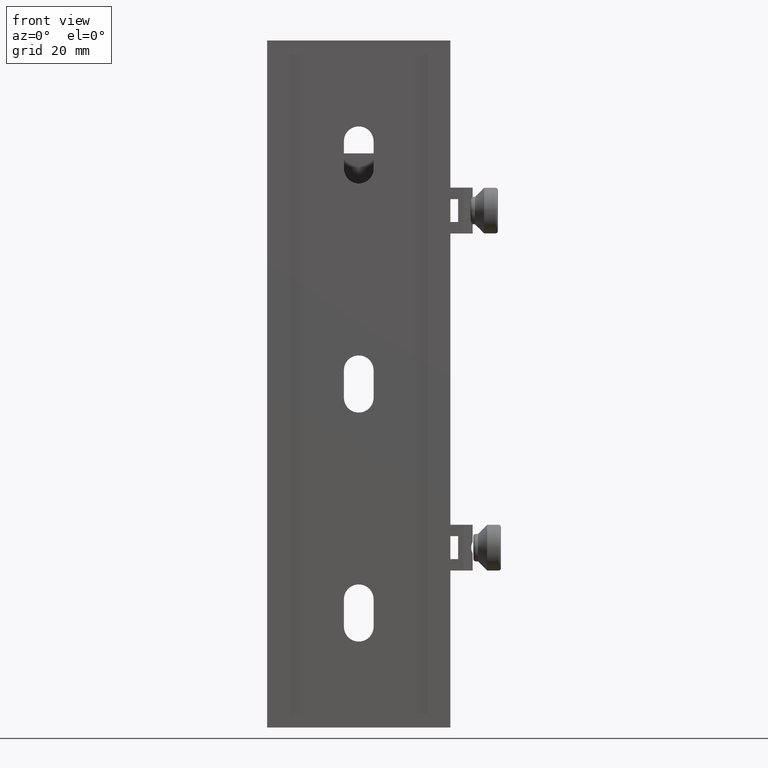
[diagram: clean part render]
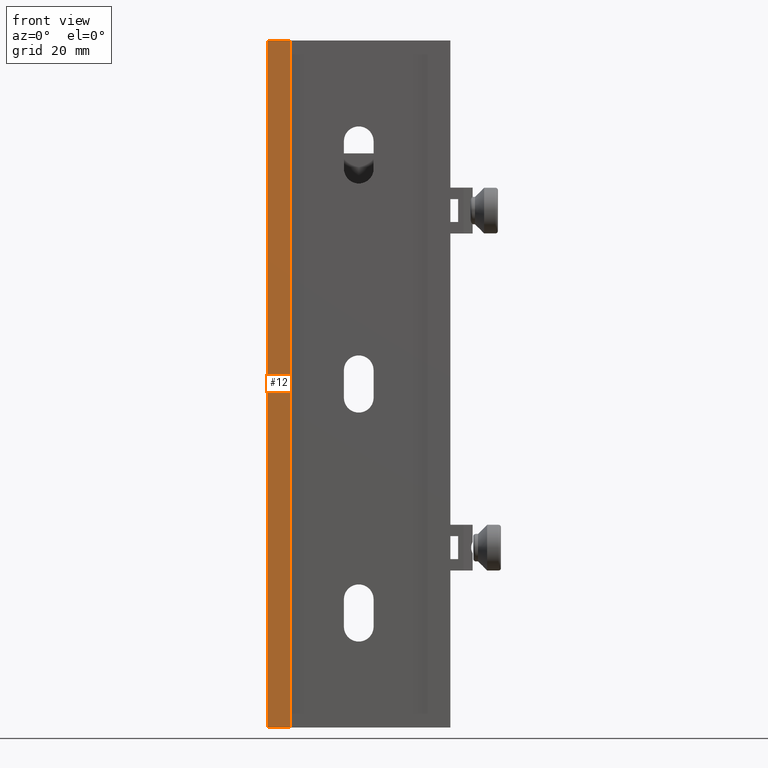
[diagram: same view with one face highlighted and labeled with its STEP entity id]
A machine part, front view. The second image highlights one B-rep face of the part: STEP entity #12.
In plain terms, the highlighted planar face has unit normal (-0, 1, 0).
Its self-contained STEP definition (entity closure, byte-faithful):
#12 = ADVANCED_FACE ( 'NONE', ( #5409 ), #5353, .F. ) ;
#42 = DIRECTION ( 'NONE',  ( 1.236303256585107026E-16, 0.000000000000000000, -1.000000000000000000 ) ) ;
#299 = DIRECTION ( 'NONE',  ( 1.000000000000000000, 1.301042606982605321E-16, 0.000000000000000000 ) ) ;
#321 = EDGE_CURVE ( 'NONE', #5475, #1060, #1321, .T. ) ;
#374 = ORIENTED_EDGE ( 'NONE', *, *, #2422, .T. ) ;
#532 = VECTOR ( 'NONE', #2877, 1000.000000000000000 ) ;
#567 = CARTESIAN_POINT ( 'NONE',  ( -19.99999999999999645, -6.499999999999999112, 75.00000000000000000 ) ) ;
#588 = CARTESIAN_POINT ( 'NONE',  ( -19.99999999999999645, -6.499999999999999112, 75.00000000000000000 ) ) ;
#862 = VERTEX_POINT ( 'NONE', #1460 ) ;
#1060 = VERTEX_POINT ( 'NONE', #4925 ) ;
#1106 = VECTOR ( 'NONE', #299, 1000.000000000000000 ) ;
#1177 = ORIENTED_EDGE ( 'NONE', *, *, #321, .F. ) ;
#1321 = LINE ( 'NONE', #3965, #5437 ) ;
#1366 = AXIS2_PLACEMENT_3D ( 'NONE', #567, #4896, #4548 ) ;
#1460 = CARTESIAN_POINT ( 'NONE',  ( -19.99999999999999645, -6.499999999999999112, -75.00000000000000000 ) ) ;
#1544 = ORIENTED_EDGE ( 'NONE', *, *, #2942, .F. ) ;
#1895 = CARTESIAN_POINT ( 'NONE',  ( -15.00000000000001066, -6.499999999999996447, 75.00000000000001421 ) ) ;
#2313 = EDGE_LOOP ( 'NONE', ( #374, #1177, #1544, #4292 ) ) ;
#2422 = EDGE_CURVE ( 'NONE', #862, #1060, #2469, .T. ) ;
#2469 = LINE ( 'NONE', #4224, #1106 ) ;
#2877 = DIRECTION ( 'NONE',  ( 1.000000000000000000, 1.301042606982605321E-16, 0.000000000000000000 ) ) ;
#2942 = EDGE_CURVE ( 'NONE', #4600, #5475, #4749, .T. ) ;
#2961 = CARTESIAN_POINT ( 'NONE',  ( -19.99999999999999645, -6.499999999999999112, 75.00000000000000000 ) ) ;
#3082 = EDGE_CURVE ( 'NONE', #4600, #862, #5066, .T. ) ;
#3347 = CARTESIAN_POINT ( 'NONE',  ( -19.99999999999999645, -6.499999999999999112, 75.00000000000000000 ) ) ;
#3965 = CARTESIAN_POINT ( 'NONE',  ( -15.00000000000003730, -6.499999999999996447, 294.6622748219313621 ) ) ;
#4224 = CARTESIAN_POINT ( 'NONE',  ( -19.99999999999999645, -6.499999999999999112, -75.00000000000000000 ) ) ;
#4292 = ORIENTED_EDGE ( 'NONE', *, *, #3082, .T. ) ;
#4548 = DIRECTION ( 'NONE',  ( -1.000000000000000000, -1.301042606982605321E-16, 0.000000000000000000 ) ) ;
#4600 = VERTEX_POINT ( 'NONE', #588 ) ;
#4749 = LINE ( 'NONE', #2961, #532 ) ;
#4896 = DIRECTION ( 'NONE',  ( -1.301042606982605321E-16, 1.000000000000000000, 0.000000000000000000 ) ) ;
#4925 = CARTESIAN_POINT ( 'NONE',  ( -14.99999999999999289, -6.499999999999996447, -75.00000000000001421 ) ) ;
#4948 = VECTOR ( 'NONE', #5187, 1000.000000000000000 ) ;
#5066 = LINE ( 'NONE', #3347, #4948 ) ;
#5187 = DIRECTION ( 'NONE',  ( -0.000000000000000000, 0.000000000000000000, -1.000000000000000000 ) ) ;
#5353 = PLANE ( 'NONE',  #1366 ) ;
#5409 = FACE_OUTER_BOUND ( 'NONE', #2313, .T. ) ;
#5437 = VECTOR ( 'NONE', #42, 1000.000000000000000 ) ;
#5475 = VERTEX_POINT ( 'NONE', #1895 ) ;